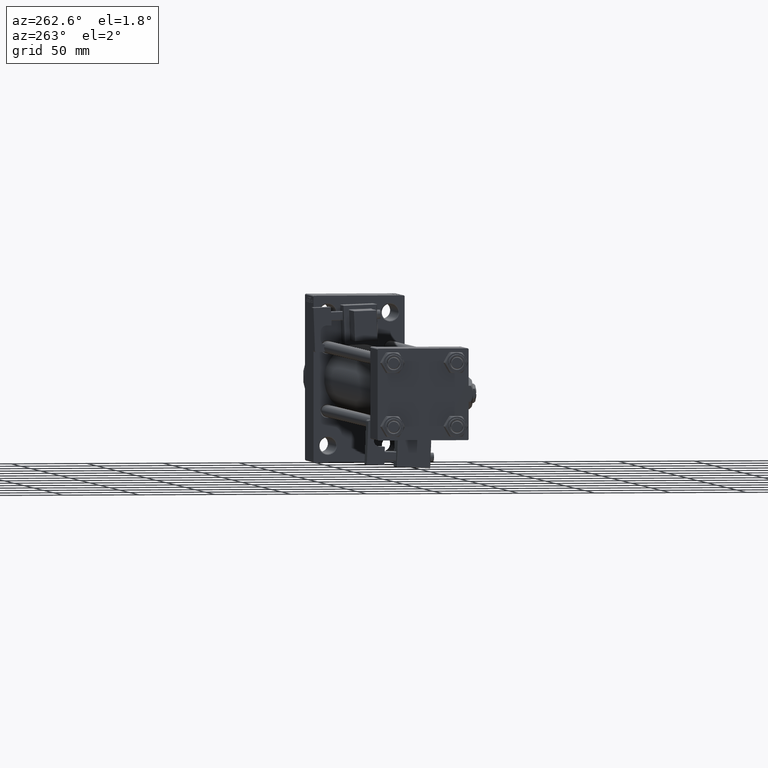
[diagram: clean part render]
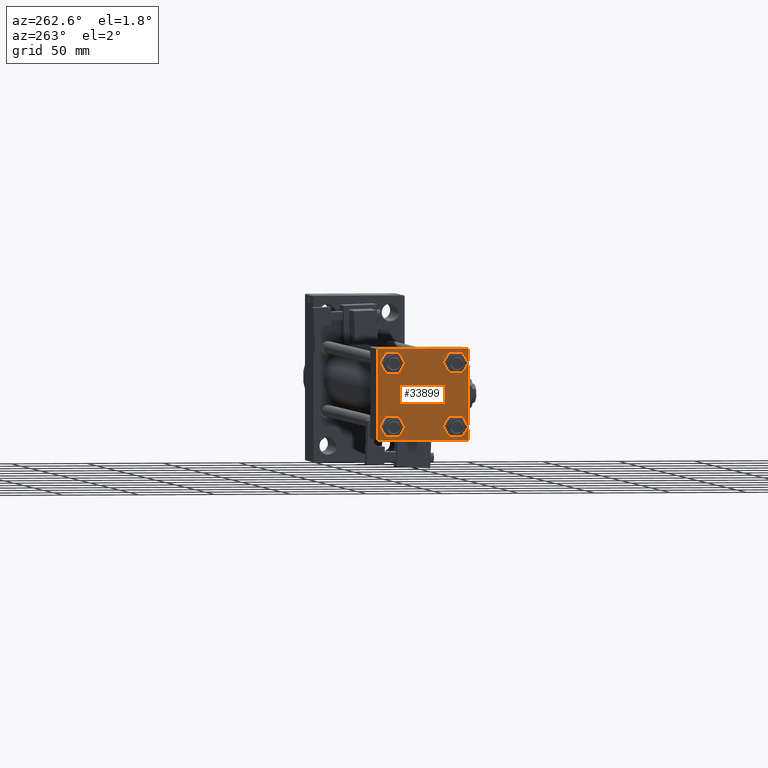
[diagram: same view with one face highlighted and labeled with its STEP entity id]
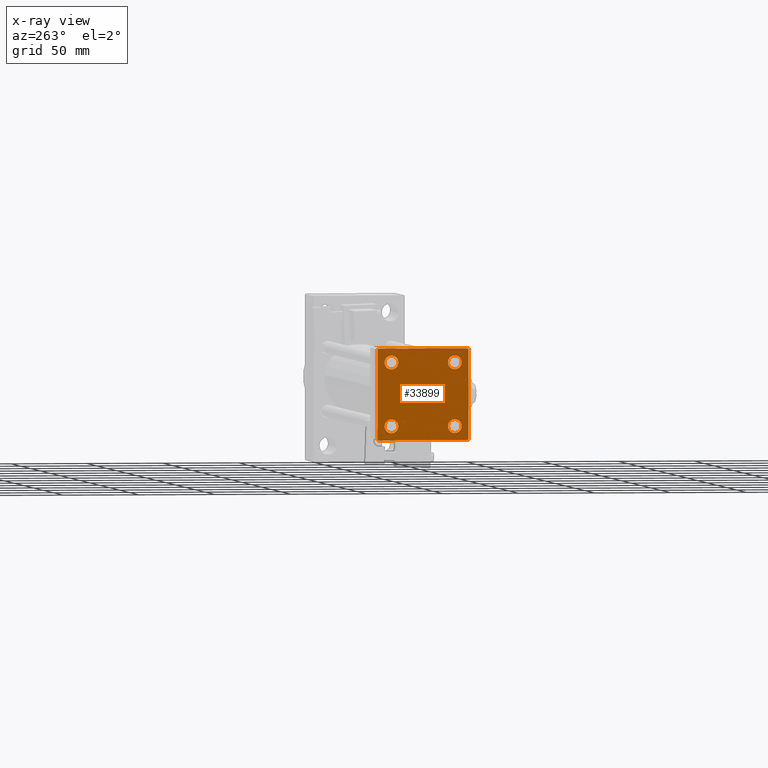
[diagram: x-ray of the same camera — body ghosted, the highlighted face saturated]
A machine part, auxiliary view. The second image highlights one B-rep face of the part: STEP entity #33899.
The next image is the same camera in x-ray: the body ghosted, the highlighted face saturated — about 0% of this face is hidden behind the body in this view.
In plain terms, the highlighted planar face has unit normal (-1, 0, 0).
Its self-contained STEP definition (entity closure, byte-faithful):
#37 = DIRECTION ( 'NONE',  ( 1.000000000000000000, -0.000000000000000000, 0.000000000000000000 ) ) ;
#112 = DIRECTION ( 'NONE',  ( 0.000000000000000000, 0.7071067811865474617, -0.7071067811865474617 ) ) ;
#486 = FACE_BOUND ( 'NONE', #47306, .T. ) ;
#2567 = VERTEX_POINT ( 'NONE', #52626 ) ;
#2666 = DIRECTION ( 'NONE',  ( 0.000000000000000000, -1.000000000000000000, -1.156482317317871725E-16 ) ) ;
#2728 = VECTOR ( 'NONE', #46343, 999.9999999999998863 ) ;
#3732 = DIRECTION ( 'NONE',  ( 0.000000000000000000, 0.000000000000000000, 1.000000000000000000 ) ) ;
#3847 = EDGE_CURVE ( 'NONE', #33571, #4410, #43166, .T. ) ;
#3973 = EDGE_CURVE ( 'NONE', #36493, #20307, #36315, .T. ) ;
#4249 = VECTOR ( 'NONE', #4515, 1000.000000000000114 ) ;
#4410 = VERTEX_POINT ( 'NONE', #27195 ) ;
#4515 = DIRECTION ( 'NONE',  ( 0.000000000000000000, -0.7071067811865474617, 0.7071067811865474617 ) ) ;
#4865 = AXIS2_PLACEMENT_3D ( 'NONE', #24254, #37, #48996 ) ;
#4973 = CARTESIAN_POINT ( 'NONE',  ( 0.000000000000000000, 20.84999999999999787, 20.85000000000000142 ) ) ;
#5073 = VERTEX_POINT ( 'NONE', #10332 ) ;
#6779 = CARTESIAN_POINT ( 'NONE',  ( 0.000000000000000000, 20.84999999999999787, 25.35000000000001918 ) ) ;
#7349 = LINE ( 'NONE', #7862, #39958 ) ;
#7542 = ORIENTED_EDGE ( 'NONE', *, *, #31974, .F. ) ;
#7862 = CARTESIAN_POINT ( 'NONE',  ( 0.000000000000000000, -30.00000000000000000, 29.99999999999999289 ) ) ;
#7933 = AXIS2_PLACEMENT_3D ( 'NONE', #46080, #50119, #30500 ) ;
#8116 = CARTESIAN_POINT ( 'NONE',  ( 0.000000000000000000, -20.84999999999999076, -25.35000000000002274 ) ) ;
#8644 = ORIENTED_EDGE ( 'NONE', *, *, #35217, .T. ) ;
#8747 = DIRECTION ( 'NONE',  ( 0.000000000000000000, 0.000000000000000000, -1.000000000000000000 ) ) ;
#8856 = EDGE_LOOP ( 'NONE', ( #27197, #40534, #18245, #28755, #7542, #26497, #16679, #50207 ) ) ;
#9727 = CARTESIAN_POINT ( 'NONE',  ( 0.000000000000000000, -20.84999999999999076, -16.34999999999998721 ) ) ;
#10332 = CARTESIAN_POINT ( 'NONE',  ( 0.000000000000000000, 29.49999999999999289, 30.00000000000000000 ) ) ;
#10383 = CARTESIAN_POINT ( 'NONE',  ( 0.000000000000000000, -20.84999999999999076, -20.85000000000000497 ) ) ;
#10708 = VERTEX_POINT ( 'NONE', #15380 ) ;
#11542 = FACE_OUTER_BOUND ( 'NONE', #8856, .T. ) ;
#11601 = AXIS2_PLACEMENT_3D ( 'NONE', #18945, #51489, #14659 ) ;
#11893 = DIRECTION ( 'NONE',  ( 1.000000000000000000, -0.000000000000000000, 0.000000000000000000 ) ) ;
#13187 = VECTOR ( 'NONE', #8747, 1000.000000000000000 ) ;
#13586 = LINE ( 'NONE', #17894, #51423 ) ;
#14418 = CARTESIAN_POINT ( 'NONE',  ( 0.000000000000000000, 29.99999999999999289, -30.00000000000000000 ) ) ;
#14659 = DIRECTION ( 'NONE',  ( 0.000000000000000000, 0.000000000000000000, 1.000000000000000000 ) ) ;
#14873 = CARTESIAN_POINT ( 'NONE',  ( 0.000000000000000000, 20.84999999999999787, -25.35000000000001918 ) ) ;
#14963 = DIRECTION ( 'NONE',  ( 0.000000000000000000, -1.000000000000000000, -1.156482317317871725E-16 ) ) ;
#15380 = CARTESIAN_POINT ( 'NONE',  ( 0.000000000000000000, -29.49999999999998579, 29.99999999999999289 ) ) ;
#15555 = CARTESIAN_POINT ( 'NONE',  ( 0.000000000000000000, -30.00000000000000000, -29.50000000000001776 ) ) ;
#15613 = ORIENTED_EDGE ( 'NONE', *, *, #3973, .T. ) ;
#15674 = CIRCLE ( 'NONE', #29388, 4.500000000000017764 ) ;
#15853 = VECTOR ( 'NONE', #14963, 1000.000000000000000 ) ;
#16487 = EDGE_CURVE ( 'NONE', #5073, #10708, #44101, .T. ) ;
#16679 = ORIENTED_EDGE ( 'NONE', *, *, #16487, .F. ) ;
#17347 = DIRECTION ( 'NONE',  ( 1.000000000000000000, -0.000000000000000000, 0.000000000000000000 ) ) ;
#17411 = LINE ( 'NONE', #50220, #4249 ) ;
#17492 = EDGE_CURVE ( 'NONE', #17648, #50242, #17411, .T. ) ;
#17648 = VERTEX_POINT ( 'NONE', #47006 ) ;
#17894 = CARTESIAN_POINT ( 'NONE',  ( -0.000000000000000000, -29.74999999999999645, 29.74999999999999645 ) ) ;
#18124 = DIRECTION ( 'NONE',  ( 1.000000000000000000, -0.000000000000000000, 0.000000000000000000 ) ) ;
#18245 = ORIENTED_EDGE ( 'NONE', *, *, #31502, .T. ) ;
#18417 = EDGE_LOOP ( 'NONE', ( #38899, #34911 ) ) ;
#18945 = CARTESIAN_POINT ( 'NONE',  ( 0.000000000000000000, 20.84999999999999787, 20.85000000000000142 ) ) ;
#19178 = DIRECTION ( 'NONE',  ( 0.000000000000000000, 0.000000000000000000, -1.000000000000000000 ) ) ;
#19873 = FACE_BOUND ( 'NONE', #26777, .T. ) ;
#19908 = CARTESIAN_POINT ( 'NONE',  ( 0.000000000000000000, 29.99999999999999289, -29.50000000000000000 ) ) ;
#20265 = CARTESIAN_POINT ( 'NONE',  ( 0.000000000000000000, -30.00000000000000000, 29.49999999999999289 ) ) ;
#20307 = VERTEX_POINT ( 'NONE', #46214 ) ;
#21118 = DIRECTION ( 'NONE',  ( -0.000000000000000000, 0.7071067811865474617, 0.7071067811865474617 ) ) ;
#21885 = CARTESIAN_POINT ( 'NONE',  ( 0.000000000000000000, 20.84999999999999787, -20.85000000000000142 ) ) ;
#22126 = EDGE_CURVE ( 'NONE', #40958, #51748, #30218, .T. ) ;
#22147 = CARTESIAN_POINT ( 'NONE',  ( 0.000000000000000000, 29.74999999999957723, -29.75000000000040501 ) ) ;
#22788 = CIRCLE ( 'NONE', #11601, 4.500000000000017764 ) ;
#23020 = DIRECTION ( 'NONE',  ( 0.000000000000000000, 0.000000000000000000, 1.000000000000000000 ) ) ;
#23044 = EDGE_CURVE ( 'NONE', #4410, #33571, #15674, .T. ) ;
#23595 = AXIS2_PLACEMENT_3D ( 'NONE', #4973, #17347, #46122 ) ;
#24183 = PLANE ( 'NONE',  #41817 ) ;
#24254 = CARTESIAN_POINT ( 'NONE',  ( 0.000000000000000000, -20.84999999999999076, 20.85000000000000497 ) ) ;
#24751 = CARTESIAN_POINT ( 'NONE',  ( 0.000000000000000000, 29.99999999999999289, 29.50000000000000000 ) ) ;
#25374 = LINE ( 'NONE', #29141, #32188 ) ;
#25747 = EDGE_CURVE ( 'NONE', #32845, #40958, #45339, .T. ) ;
#26325 = ORIENTED_EDGE ( 'NONE', *, *, #3847, .T. ) ;
#26401 = CIRCLE ( 'NONE', #4865, 4.500000000000017764 ) ;
#26497 = ORIENTED_EDGE ( 'NONE', *, *, #50719, .T. ) ;
#26777 = EDGE_LOOP ( 'NONE', ( #15613, #50333 ) ) ;
#27195 = CARTESIAN_POINT ( 'NONE',  ( 0.000000000000000000, 20.84999999999999787, -16.34999999999998366 ) ) ;
#27197 = ORIENTED_EDGE ( 'NONE', *, *, #25747, .T. ) ;
#28389 = VECTOR ( 'NONE', #2666, 1000.000000000000000 ) ;
#28755 = ORIENTED_EDGE ( 'NONE', *, *, #17492, .T. ) ;
#29141 = CARTESIAN_POINT ( 'NONE',  ( 0.000000000000000000, 29.74999999999999645, 29.74999999999999645 ) ) ;
#29388 = AXIS2_PLACEMENT_3D ( 'NONE', #49012, #11893, #41215 ) ;
#30218 = LINE ( 'NONE', #22147, #2728 ) ;
#30274 = CIRCLE ( 'NONE', #49189, 4.500000000000017764 ) ;
#30287 = LINE ( 'NONE', #14418, #15853 ) ;
#30500 = DIRECTION ( 'NONE',  ( 0.000000000000000000, 0.000000000000000000, 1.000000000000000000 ) ) ;
#30694 = CIRCLE ( 'NONE', #44450, 4.500000000000017764 ) ;
#31502 = EDGE_CURVE ( 'NONE', #51748, #17648, #30287, .T. ) ;
#31794 = EDGE_CURVE ( 'NONE', #5073, #32845, #25374, .T. ) ;
#31974 = EDGE_CURVE ( 'NONE', #33458, #50242, #7349, .T. ) ;
#32188 = VECTOR ( 'NONE', #112, 1000.000000000000114 ) ;
#32754 = VERTEX_POINT ( 'NONE', #6779 ) ;
#32785 = CARTESIAN_POINT ( 'NONE',  ( 0.000000000000000000, 0.000000000000000000, 0.000000000000000000 ) ) ;
#32845 = VERTEX_POINT ( 'NONE', #24751 ) ;
#33043 = CARTESIAN_POINT ( 'NONE',  ( 0.000000000000000000, -20.84999999999999076, -20.85000000000000497 ) ) ;
#33047 = DIRECTION ( 'NONE',  ( -0.000000000000000000, 0.000000000000000000, 1.000000000000000000 ) ) ;
#33458 = VERTEX_POINT ( 'NONE', #20265 ) ;
#33571 = VERTEX_POINT ( 'NONE', #14873 ) ;
#33899 = ADVANCED_FACE ( 'NONE', ( #19873, #486, #37090, #40871, #11542 ), #24183, .T. ) ;
#34512 = VERTEX_POINT ( 'NONE', #8116 ) ;
#34548 = EDGE_CURVE ( 'NONE', #20307, #36493, #26401, .T. ) ;
#34911 = ORIENTED_EDGE ( 'NONE', *, *, #38416, .T. ) ;
#35136 = DIRECTION ( 'NONE',  ( 1.000000000000000000, -0.000000000000000000, 0.000000000000000000 ) ) ;
#35217 = EDGE_CURVE ( 'NONE', #34512, #39966, #30274, .T. ) ;
#35502 = CARTESIAN_POINT ( 'NONE',  ( 0.000000000000000000, 29.99999999999999289, 30.00000000000000000 ) ) ;
#36315 = CIRCLE ( 'NONE', #7933, 4.500000000000017764 ) ;
#36493 = VERTEX_POINT ( 'NONE', #52722 ) ;
#36753 = CARTESIAN_POINT ( 'NONE',  ( 0.000000000000000000, 29.99999999999999289, 30.00000000000000000 ) ) ;
#37090 = FACE_BOUND ( 'NONE', #50007, .T. ) ;
#38416 = EDGE_CURVE ( 'NONE', #2567, #32754, #51041, .T. ) ;
#38899 = ORIENTED_EDGE ( 'NONE', *, *, #43116, .T. ) ;
#39477 = ORIENTED_EDGE ( 'NONE', *, *, #47879, .T. ) ;
#39958 = VECTOR ( 'NONE', #19178, 1000.000000000000000 ) ;
#39966 = VERTEX_POINT ( 'NONE', #9727 ) ;
#40036 = ORIENTED_EDGE ( 'NONE', *, *, #23044, .T. ) ;
#40534 = ORIENTED_EDGE ( 'NONE', *, *, #22126, .T. ) ;
#40871 = FACE_BOUND ( 'NONE', #18417, .T. ) ;
#40958 = VERTEX_POINT ( 'NONE', #19908 ) ;
#41215 = DIRECTION ( 'NONE',  ( 0.000000000000000000, 0.000000000000000000, 1.000000000000000000 ) ) ;
#41817 = AXIS2_PLACEMENT_3D ( 'NONE', #32785, #48920, #33047 ) ;
#43116 = EDGE_CURVE ( 'NONE', #32754, #2567, #22788, .T. ) ;
#43166 = CIRCLE ( 'NONE', #52574, 4.500000000000017764 ) ;
#44101 = LINE ( 'NONE', #35502, #28389 ) ;
#44450 = AXIS2_PLACEMENT_3D ( 'NONE', #33043, #44630, #3732 ) ;
#44630 = DIRECTION ( 'NONE',  ( 1.000000000000000000, -0.000000000000000000, 0.000000000000000000 ) ) ;
#45339 = LINE ( 'NONE', #36753, #13187 ) ;
#46080 = CARTESIAN_POINT ( 'NONE',  ( 0.000000000000000000, -20.84999999999999076, 20.85000000000000497 ) ) ;
#46122 = DIRECTION ( 'NONE',  ( 0.000000000000000000, 0.000000000000000000, 1.000000000000000000 ) ) ;
#46214 = CARTESIAN_POINT ( 'NONE',  ( 0.000000000000000000, -20.84999999999999076, 16.34999999999998721 ) ) ;
#46343 = DIRECTION ( 'NONE',  ( -0.000000000000000000, -0.7071067811865574537, -0.7071067811865376918 ) ) ;
#46349 = DIRECTION ( 'NONE',  ( 0.000000000000000000, 0.000000000000000000, 1.000000000000000000 ) ) ;
#47006 = CARTESIAN_POINT ( 'NONE',  ( 0.000000000000000000, -29.50000000000000000, -30.00000000000000711 ) ) ;
#47306 = EDGE_LOOP ( 'NONE', ( #39477, #8644 ) ) ;
#47879 = EDGE_CURVE ( 'NONE', #39966, #34512, #30694, .T. ) ;
#48920 = DIRECTION ( 'NONE',  ( -1.000000000000000000, 0.000000000000000000, -0.000000000000000000 ) ) ;
#48996 = DIRECTION ( 'NONE',  ( 0.000000000000000000, 0.000000000000000000, 1.000000000000000000 ) ) ;
#49012 = CARTESIAN_POINT ( 'NONE',  ( 0.000000000000000000, 20.84999999999999787, -20.85000000000000142 ) ) ;
#49189 = AXIS2_PLACEMENT_3D ( 'NONE', #10383, #35136, #23020 ) ;
#50007 = EDGE_LOOP ( 'NONE', ( #40036, #26325 ) ) ;
#50119 = DIRECTION ( 'NONE',  ( 1.000000000000000000, -0.000000000000000000, 0.000000000000000000 ) ) ;
#50207 = ORIENTED_EDGE ( 'NONE', *, *, #31794, .T. ) ;
#50220 = CARTESIAN_POINT ( 'NONE',  ( 0.000000000000000000, -29.75000000000001066, -29.75000000000001066 ) ) ;
#50242 = VERTEX_POINT ( 'NONE', #15555 ) ;
#50333 = ORIENTED_EDGE ( 'NONE', *, *, #34548, .T. ) ;
#50719 = EDGE_CURVE ( 'NONE', #33458, #10708, #13586, .T. ) ;
#51041 = CIRCLE ( 'NONE', #23595, 4.500000000000017764 ) ;
#51423 = VECTOR ( 'NONE', #21118, 1000.000000000000114 ) ;
#51489 = DIRECTION ( 'NONE',  ( 1.000000000000000000, -0.000000000000000000, 0.000000000000000000 ) ) ;
#51748 = VERTEX_POINT ( 'NONE', #52296 ) ;
#52296 = CARTESIAN_POINT ( 'NONE',  ( 0.000000000000000000, 29.49999999999997868, -30.00000000000000000 ) ) ;
#52574 = AXIS2_PLACEMENT_3D ( 'NONE', #21885, #18124, #46349 ) ;
#52626 = CARTESIAN_POINT ( 'NONE',  ( 0.000000000000000000, 20.84999999999999787, 16.34999999999998366 ) ) ;
#52722 = CARTESIAN_POINT ( 'NONE',  ( 0.000000000000000000, -20.84999999999999076, 25.35000000000002274 ) ) ;